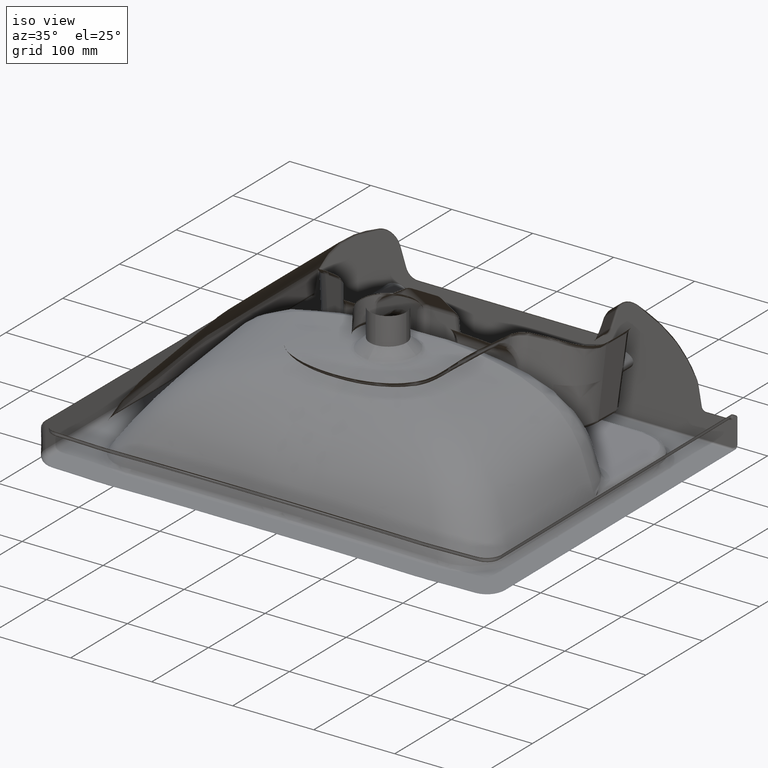
[diagram: clean part render]
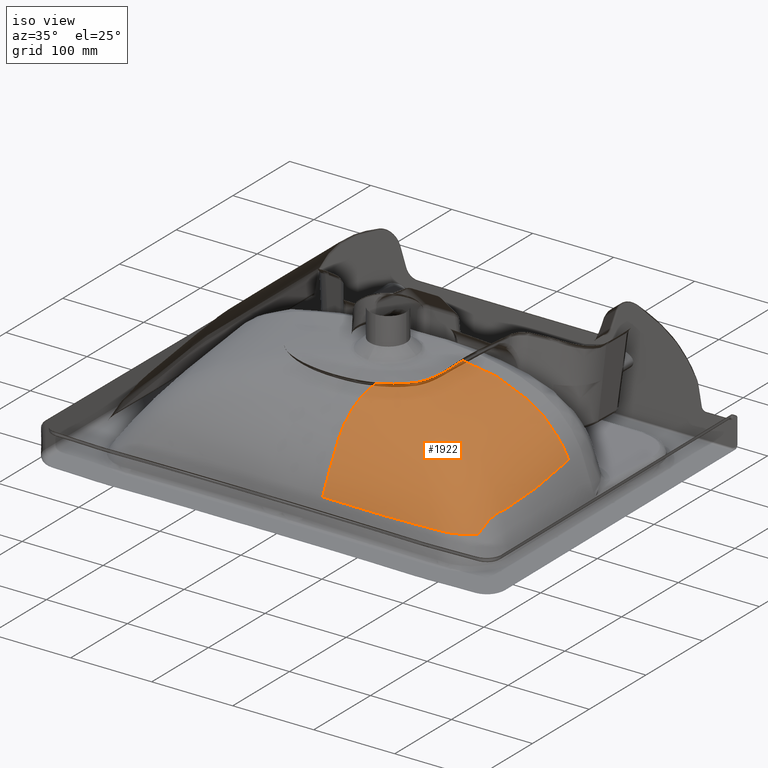
[diagram: same view with one face highlighted and labeled with its STEP entity id]
A machine part, iso view. The second image highlights one B-rep face of the part: STEP entity #1922.
In plain terms, the highlighted face is a freeform B-spline surface patch.
Its self-contained STEP definition (entity closure, byte-faithful):
#852=B_SPLINE_SURFACE_WITH_KNOTS('',3,3,((#34490,#34491,#34492,#34493,#34494,
#34495,#34496,#34497,#34498,#34499,#34500,#34501,#34502,#34503,#34504,#34505,
#34506,#34507,#34508,#34509),(#34510,#34511,#34512,#34513,#34514,#34515,
#34516,#34517,#34518,#34519,#34520,#34521,#34522,#34523,#34524,#34525,#34526,
#34527,#34528,#34529),(#34530,#34531,#34532,#34533,#34534,#34535,#34536,
#34537,#34538,#34539,#34540,#34541,#34542,#34543,#34544,#34545,#34546,#34547,
#34548,#34549),(#34550,#34551,#34552,#34553,#34554,#34555,#34556,#34557,
#34558,#34559,#34560,#34561,#34562,#34563,#34564,#34565,#34566,#34567,#34568,
#34569),(#34570,#34571,#34572,#34573,#34574,#34575,#34576,#34577,#34578,
#34579,#34580,#34581,#34582,#34583,#34584,#34585,#34586,#34587,#34588,#34589),
(#34590,#34591,#34592,#34593,#34594,#34595,#34596,#34597,#34598,#34599,
#34600,#34601,#34602,#34603,#34604,#34605,#34606,#34607,#34608,#34609),
(#34610,#34611,#34612,#34613,#34614,#34615,#34616,#34617,#34618,#34619,
#34620,#34621,#34622,#34623,#34624,#34625,#34626,#34627,#34628,#34629),
(#34630,#34631,#34632,#34633,#34634,#34635,#34636,#34637,#34638,#34639,
#34640,#34641,#34642,#34643,#34644,#34645,#34646,#34647,#34648,#34649),
(#34650,#34651,#34652,#34653,#34654,#34655,#34656,#34657,#34658,#34659,
#34660,#34661,#34662,#34663,#34664,#34665,#34666,#34667,#34668,#34669),
(#34670,#34671,#34672,#34673,#34674,#34675,#34676,#34677,#34678,#34679,
#34680,#34681,#34682,#34683,#34684,#34685,#34686,#34687,#34688,#34689),
(#34690,#34691,#34692,#34693,#34694,#34695,#34696,#34697,#34698,#34699,
#34700,#34701,#34702,#34703,#34704,#34705,#34706,#34707,#34708,#34709),
(#34710,#34711,#34712,#34713,#34714,#34715,#34716,#34717,#34718,#34719,
#34720,#34721,#34722,#34723,#34724,#34725,#34726,#34727,#34728,#34729),
(#34730,#34731,#34732,#34733,#34734,#34735,#34736,#34737,#34738,#34739,
#34740,#34741,#34742,#34743,#34744,#34745,#34746,#34747,#34748,#34749),
(#34750,#34751,#34752,#34753,#34754,#34755,#34756,#34757,#34758,#34759,
#34760,#34761,#34762,#34763,#34764,#34765,#34766,#34767,#34768,#34769),
(#34770,#34771,#34772,#34773,#34774,#34775,#34776,#34777,#34778,#34779,
#34780,#34781,#34782,#34783,#34784,#34785,#34786,#34787,#34788,#34789),
(#34790,#34791,#34792,#34793,#34794,#34795,#34796,#34797,#34798,#34799,
#34800,#34801,#34802,#34803,#34804,#34805,#34806,#34807,#34808,#34809),
(#34810,#34811,#34812,#34813,#34814,#34815,#34816,#34817,#34818,#34819,
#34820,#34821,#34822,#34823,#34824,#34825,#34826,#34827,#34828,#34829),
(#34830,#34831,#34832,#34833,#34834,#34835,#34836,#34837,#34838,#34839,
#34840,#34841,#34842,#34843,#34844,#34845,#34846,#34847,#34848,#34849),
(#34850,#34851,#34852,#34853,#34854,#34855,#34856,#34857,#34858,#34859,
#34860,#34861,#34862,#34863,#34864,#34865,#34866,#34867,#34868,#34869),
(#34870,#34871,#34872,#34873,#34874,#34875,#34876,#34877,#34878,#34879,
#34880,#34881,#34882,#34883,#34884,#34885,#34886,#34887,#34888,#34889),
(#34890,#34891,#34892,#34893,#34894,#34895,#34896,#34897,#34898,#34899,
#34900,#34901,#34902,#34903,#34904,#34905,#34906,#34907,#34908,#34909),
(#34910,#34911,#34912,#34913,#34914,#34915,#34916,#34917,#34918,#34919,
#34920,#34921,#34922,#34923,#34924,#34925,#34926,#34927,#34928,#34929),
(#34930,#34931,#34932,#34933,#34934,#34935,#34936,#34937,#34938,#34939,
#34940,#34941,#34942,#34943,#34944,#34945,#34946,#34947,#34948,#34949),
(#34950,#34951,#34952,#34953,#34954,#34955,#34956,#34957,#34958,#34959,
#34960,#34961,#34962,#34963,#34964,#34965,#34966,#34967,#34968,#34969),
(#34970,#34971,#34972,#34973,#34974,#34975,#34976,#34977,#34978,#34979,
#34980,#34981,#34982,#34983,#34984,#34985,#34986,#34987,#34988,#34989)),
 .UNSPECIFIED.,.F.,.F.,.F.,(4,1,1,1,1,1,1,1,1,1,1,1,1,1,1,1,1,1,1,1,1,1,
4),(4,1,1,1,1,1,1,1,1,1,1,1,1,1,1,1,1,4),(0.,0.0625,0.125,0.25,0.375,0.4375,
0.46875,0.4765625,0.484375,0.5,0.515625,0.53125,0.5625,0.59375,0.625,0.65625,
0.6640625,0.671875,0.6875,0.75,0.8125,0.875,1.),(0.,0.125,0.1875,0.25,0.3125,
0.375,0.4375,0.5,0.5625,0.625,0.6875,0.71875,0.75,0.78125,0.8125,0.875,
0.9375,1.),.UNSPECIFIED.);
#1922=ADVANCED_FACE('',(#2551),#852,.F.);
#2551=FACE_OUTER_BOUND('',#3100,.T.);
#3100=EDGE_LOOP('',(#5580,#5581,#5582,#5583,#5584,#5585,#5586,#5587));
#5580=ORIENTED_EDGE('',*,*,#7394,.F.);
#5581=ORIENTED_EDGE('',*,*,#7527,.T.);
#5582=ORIENTED_EDGE('',*,*,#7826,.F.);
#5583=ORIENTED_EDGE('',*,*,#6881,.F.);
#5584=ORIENTED_EDGE('',*,*,#6825,.F.);
#5585=ORIENTED_EDGE('',*,*,#6795,.F.);
#5586=ORIENTED_EDGE('',*,*,#7827,.F.);
#5587=ORIENTED_EDGE('',*,*,#7177,.T.);
#5975=VERTEX_POINT('',#14619);
#5976=VERTEX_POINT('',#14626);
#5995=VERTEX_POINT('',#14937);
#6031=VERTEX_POINT('',#15484);
#6153=VERTEX_POINT('',#19158);
#6201=VERTEX_POINT('',#19822);
#6327=VERTEX_POINT('',#21650);
#6396=VERTEX_POINT('',#23709);
#6795=EDGE_CURVE('',#5975,#5976,#8056,.T.);
#6825=EDGE_CURVE('',#5976,#5995,#8082,.T.);
#6881=EDGE_CURVE('',#5995,#6031,#8118,.T.);
#7177=EDGE_CURVE('',#6153,#6201,#8293,.T.);
#7394=EDGE_CURVE('',#6327,#6201,#8403,.T.);
#7527=EDGE_CURVE('',#6327,#6396,#8455,.T.);
#7826=EDGE_CURVE('',#6031,#6396,#8587,.T.);
#7827=EDGE_CURVE('',#6153,#5975,#8588,.T.);
#8056=B_SPLINE_CURVE_WITH_KNOTS('',3,(#14620,#14621,#14622,#14623,#14624,
#14625),.UNSPECIFIED.,.F.,.F.,(4,2,4),(0.,0.5,1.),.UNSPECIFIED.);
#8082=B_SPLINE_CURVE_WITH_KNOTS('',3,(#14929,#14930,#14931,#14932,#14933,
#14934,#14935,#14936),.UNSPECIFIED.,.F.,.F.,(4,2,2,4),(0.,0.25,0.5,1.),
 .UNSPECIFIED.);
#8118=B_SPLINE_CURVE_WITH_KNOTS('',3,(#15516,#15517,#15518,#15519,#15520,
#15521,#15522),.UNSPECIFIED.,.F.,.F.,(4,3,4),(0.,0.802573430894075,1.),
 .UNSPECIFIED.);
#8293=B_SPLINE_CURVE_WITH_KNOTS('',3,(#19823,#19824,#19825,#19826),
 .UNSPECIFIED.,.F.,.F.,(4,4),(0.,1.),.UNSPECIFIED.);
#8403=B_SPLINE_CURVE_WITH_KNOTS('',3,(#21651,#21652,#21653,#21654,#21655,
#21656,#21657,#21658,#21659,#21660,#21661,#21662,#21663,#21664),
 .UNSPECIFIED.,.F.,.F.,(4,2,2,2,2,2,4),(0.,0.125,0.25,0.3125,0.375,0.5,
1.),.UNSPECIFIED.);
#8455=B_SPLINE_CURVE_WITH_KNOTS('',3,(#23691,#23692,#23693,#23694,#23695,
#23696,#23697,#23698,#23699,#23700,#23701,#23702,#23703,#23704,#23705,#23706,
#23707,#23708),.UNSPECIFIED.,.F.,.F.,(4,2,2,2,2,2,2,2,4),(0.,0.124999999999999,
0.249999999999997,0.281249999999997,0.296874999999997,0.312499999999997,
0.374999999999997,0.499999999999998,1.),.UNSPECIFIED.);
#8587=B_SPLINE_CURVE_WITH_KNOTS('',3,(#34397,#34398,#34399,#34400,#34401,
#34402,#34403,#34404,#34405,#34406,#34407,#34408,#34409,#34410),
 .UNSPECIFIED.,.F.,.F.,(4,1,1,1,1,1,1,1,1,1,1,4),(0.,0.115001984994547,
0.270360584918154,0.348039884879958,0.425719184841762,0.581077784765369,
0.658757084727173,0.736436384688977,0.81411568465078,0.891794984612584,
0.969474284574388,1.),.UNSPECIFIED.);
#8588=B_SPLINE_CURVE_WITH_KNOTS('',3,(#34475,#34476,#34477,#34478,#34479,
#34480,#34481,#34482,#34483,#34484,#34485,#34486,#34487,#34488,#34489),
 .UNSPECIFIED.,.F.,.F.,(4,1,1,1,1,1,1,1,1,1,1,1,4),(0.,0.111798215935475,
0.178815670625153,0.245833125314831,0.312850580004509,0.379868034694188,
0.513902944073544,0.580920398763222,0.647937853452901,0.714955308142579,
0.781972762832257,0.916007672211614,1.),.UNSPECIFIED.);
#14619=CARTESIAN_POINT('',(-50.0002494259444,-63.7208675938333,-132.589269762929));
#14620=CARTESIAN_POINT('',(-50.0009563793561,-63.720108968059,-132.590156765849));
#14621=CARTESIAN_POINT('',(-56.8129519618308,-61.5410465299708,-132.861903392965));
#14622=CARTESIAN_POINT('',(-63.4159246669598,-58.758186017684,-133.203760355856));
#14623=CARTESIAN_POINT('',(-75.7777450016454,-51.6914371922445,-134.06836788853));
#14624=CARTESIAN_POINT('',(-81.4387579755111,-47.4743826413824,-134.585131101288));
#14625=CARTESIAN_POINT('',(-86.3232956277646,-42.234829305609,-135.216445768195));
#14626=CARTESIAN_POINT('',(-86.3232956277645,-42.2348293056091,-135.216445768195));
#14929=CARTESIAN_POINT('',(-86.3232956277644,-42.2348293056092,-135.216445768195));
#14930=CARTESIAN_POINT('',(-88.9355564811535,-39.4327053293569,-135.554074159649));
#14931=CARTESIAN_POINT('',(-91.0944930562234,-36.2770230637297,-135.932685326083));
#14932=CARTESIAN_POINT('',(-94.5570966801777,-29.6062527972822,-136.72817155952));
#14933=CARTESIAN_POINT('',(-95.8972036492424,-26.0367149559091,-137.149967712216));
#14934=CARTESIAN_POINT('',(-99.0114125294223,-15.0936551438902,-138.437801139922));
#14935=CARTESIAN_POINT('',(-99.9137918007563,-7.52089265000443,-139.325827008412));
#14936=CARTESIAN_POINT('',(-100.732382234716,0.0259354006217677,-140.212793846871));
#14937=CARTESIAN_POINT('',(-100.732382234716,0.0259354006218039,-140.212793846871));
#15484=CARTESIAN_POINT('',(-102.333401778855,14.7910724210758,-141.945604825931));
#15516=CARTESIAN_POINT('',(-100.732382234716,0.0259354006218758,-140.212793846871));
#15517=CARTESIAN_POINT('',(-101.160810190207,3.97573981810991,-140.677008151636));
#15518=CARTESIAN_POINT('',(-101.589259945427,7.92563924647087,-141.140393824121));
#15519=CARTESIAN_POINT('',(-102.017456772991,11.8755825502431,-141.603638623392));
#15520=CARTESIAN_POINT('',(-102.122789727884,12.8472366426228,-141.717593095741));
#15521=CARTESIAN_POINT('',(-102.228112506079,13.8188935058281,-141.831533350268));
#15522=CARTESIAN_POINT('',(-102.333425812209,14.7905531314337,-141.945458799193));
#19158=CARTESIAN_POINT('',(-49.9998703336096,-157.199900581322,-41.5298167888265));
#19822=CARTESIAN_POINT('',(-124.808714787029,-156.123147104387,-40.3579257671888));
#19823=CARTESIAN_POINT('',(-49.9998723799263,-157.200586214298,-41.5284785948204));
#19824=CARTESIAN_POINT('',(-74.9419087598941,-156.98693479958,-41.2986198446874));
#19825=CARTESIAN_POINT('',(-99.8780093604382,-156.616990331446,-40.9090356225497));
#19826=CARTESIAN_POINT('',(-124.808714787029,-156.123147104387,-40.3579257671889));
#21650=CARTESIAN_POINT('',(-228.272075584484,-137.930433445626,-40.0403707690547));
#21651=CARTESIAN_POINT('',(-228.272075584484,-137.930433445626,-40.0403707690546));
#21652=CARTESIAN_POINT('',(-225.090519508463,-141.118893283182,-40.0960255425402));
#21653=CARTESIAN_POINT('',(-221.46628985887,-143.906865215485,-40.1446897736365));
#21654=CARTESIAN_POINT('',(-213.652265647568,-148.456595232618,-40.2241056064915));
#21655=CARTESIAN_POINT('',(-209.510746522609,-150.204682130667,-40.2546185767971));
#21656=CARTESIAN_POINT('',(-202.942868408951,-152.028021915311,-40.2864450911242));
#21657=CARTESIAN_POINT('',(-200.719847978957,-152.495423599024,-40.294603617861));
#21658=CARTESIAN_POINT('',(-196.278894237322,-153.128441475935,-40.3056529860032));
#21659=CARTESIAN_POINT('',(-194.047029122351,-153.249244493444,-40.3077616105174));
#21660=CARTESIAN_POINT('',(-187.349925193218,-153.585728665876,-40.3136349635944));
#21661=CARTESIAN_POINT('',(-182.884659347542,-153.800945286749,-40.3173915836854));
#21662=CARTESIAN_POINT('',(-160.556494828131,-154.845489084692,-40.3356241634989));
#21663=CARTESIAN_POINT('',(-142.685671399236,-155.553902578519,-40.3479895670297));
#21664=CARTESIAN_POINT('',(-124.808714787028,-156.123147104387,-40.3579257671887));
#23691=CARTESIAN_POINT('',(-228.272075584483,-137.930433445626,-40.0403707690548));
#23692=CARTESIAN_POINT('',(-228.865116685335,-132.633339253064,-43.9597371584237));
#23693=CARTESIAN_POINT('',(-229.54570137406,-127.117214598782,-47.4583013484076));
#23694=CARTESIAN_POINT('',(-231.221983632074,-115.24613162797,-52.8487290326856));
#23695=CARTESIAN_POINT('',(-232.326605994354,-108.678784407525,-54.7050984207511));
#23696=CARTESIAN_POINT('',(-233.784078993083,-100.559367477462,-54.2787806785117));
#23697=CARTESIAN_POINT('',(-234.179713423048,-98.9263382193599,-53.8502968875479));
#23698=CARTESIAN_POINT('',(-234.28245440669,-96.4688616137313,-53.8696079289374));
#23699=CARTESIAN_POINT('',(-234.271145737211,-95.6535083629761,-53.9469798820884));
#23700=CARTESIAN_POINT('',(-234.284110218213,-94.0200197563303,-54.0494840494043));
#23701=CARTESIAN_POINT('',(-234.290989377,-93.2032936261793,-54.1009716828863));
#23702=CARTESIAN_POINT('',(-234.328327026535,-89.1194891488624,-54.3550252056109));
#23703=CARTESIAN_POINT('',(-234.363242086994,-85.8519577284593,-54.5493084148727));
#23704=CARTESIAN_POINT('',(-234.440166551055,-76.0514125042933,-55.1709040519996));
#23705=CARTESIAN_POINT('',(-234.471175299716,-69.5180419368305,-55.6139836625607));
#23706=CARTESIAN_POINT('',(-234.525253121212,-36.8821791980138,-58.0825642202814));
#23707=CARTESIAN_POINT('',(-234.338157876152,-10.8674477065066,-60.7788375826826));
#23708=CARTESIAN_POINT('',(-233.366950590609,14.7906677713562,-66.2225907886849));
#23709=CARTESIAN_POINT('',(-233.368681924784,14.7915335725219,-66.2171416187439));
#34397=CARTESIAN_POINT('',(-102.333423621825,14.7916054585755,-141.945718621587));
#34398=CARTESIAN_POINT('',(-108.437764176413,14.7916054585754,-141.604724323199));
#34399=CARTESIAN_POINT('',(-122.709403332406,14.7916054585753,-140.349861050398));
#34400=CARTESIAN_POINT('',(-140.78148987957,14.7916054585753,-137.036550866901));
#34401=CARTESIAN_POINT('',(-156.610339639515,14.7916054585752,-132.181701987654));
#34402=CARTESIAN_POINT('',(-172.094531514044,14.7916054585754,-126.006019382374));
#34403=CARTESIAN_POINT('',(-186.781970395243,14.7916054585753,-118.540012510358));
#34404=CARTESIAN_POINT('',(-200.52662008912,14.7916054585753,-108.947246486214));
#34405=CARTESIAN_POINT('',(-209.761898425942,14.7916054585753,-100.69752676598));
#34406=CARTESIAN_POINT('',(-217.730205269323,14.7916054585753,-91.3356932366798));
#34407=CARTESIAN_POINT('',(-225.266233990159,14.7916054585753,-81.5883836435933));
#34408=CARTESIAN_POINT('',(-230.304486358661,14.7916054585753,-72.9313542460503));
#34409=CARTESIAN_POINT('',(-232.71618102091,14.7916054585753,-67.7034172251825));
#34410=CARTESIAN_POINT('',(-233.367480002474,14.7916054585753,-66.2176777980273));
#34475=CARTESIAN_POINT('',(-50.0000000046041,-157.201545902544,-41.5323471457052));
#34476=CARTESIAN_POINT('',(-50.0000000037315,-154.848620787258,-46.1412228790791));
#34477=CARTESIAN_POINT('',(-49.9999999993902,-151.088148308708,-53.5143424537715));
#34478=CARTESIAN_POINT('',(-49.9999999993902,-146.056896286124,-63.7198904081197));
#34479=CARTESIAN_POINT('',(-50.0000000001525,-141.967685320531,-72.0777623479118));
#34480=CARTESIAN_POINT('',(-50.,-137.88801703957,-80.4486755533298));
#34481=CARTESIAN_POINT('',(-50.,-132.128559311423,-91.4057466226751));
#34482=CARTESIAN_POINT('',(-50.,-125.317161733901,-101.647960346886));
#34483=CARTESIAN_POINT('',(-50.,-116.655855077133,-110.752957581402));
#34484=CARTESIAN_POINT('',(-50.,-109.503752118688,-116.654467242398));
#34485=CARTESIAN_POINT('',(-50.,-101.684468611662,-121.64716759221));
#34486=CARTESIAN_POINT('',(-50.0000000000541,-90.3579448963206,-127.077399370902));
#34487=CARTESIAN_POINT('',(-49.9999999996403,-77.6622293389733,-130.674141218723));
#34488=CARTESIAN_POINT('',(-50.0000000004393,-67.6117193642459,-132.15351405583));
#34489=CARTESIAN_POINT('',(-50.0000000006493,-63.7208264218206,-132.5883352177));
#34490=CARTESIAN_POINT('',(-5.87547534955156E-009,-64.1674072786492,-132.300008261711));
#34491=CARTESIAN_POINT('',(-5.63066171656933E-009,-70.0914126241573,-131.851736448282));
#34492=CARTESIAN_POINT('',(-5.26344134278515E-009,-78.9413465150922,-130.618274578249));
#34493=CARTESIAN_POINT('',(-4.77381450013751E-009,-90.4193091994106,-127.474765554666));
#34494=CARTESIAN_POINT('',(-4.4065946051874E-009,-98.7462125584352,-124.279554121704));
#34495=CARTESIAN_POINT('',(-4.03937502310955E-009,-106.670953194162,-120.158629956626));
#34496=CARTESIAN_POINT('',(-3.67215585387779E-009,-114.038799950824,-115.120022614015));
#34497=CARTESIAN_POINT('',(-3.30493719746598E-009,-120.695021672651,-109.171761648454));
#34498=CARTESIAN_POINT('',(-2.93771914097287E-009,-126.585743917653,-102.458994221982));
#34499=CARTESIAN_POINT('',(-2.5705017714972E-009,-131.657092243839,-95.1268674966404));
#34500=CARTESIAN_POINT('',(-2.2032851885614E-009,-136.037413490476,-87.3487134084731));
#34501=CARTESIAN_POINT('',(-1.89727210783348E-009,-139.218780995773,-80.6396721460174));
#34502=CARTESIAN_POINT('',(-1.65246231185982E-009,-141.657852223814,-75.221566073616));
#34503=CARTESIAN_POINT('',(-1.46885536118696E-009,-143.472586851834,-71.1510765853361));
#34504=CARTESIAN_POINT('',(-1.28524886882455E-009,-145.311195281932,-67.0922037603165));
#34505=CARTESIAN_POINT('',(-1.04044089757853E-009,-147.791558907497,-61.6940397244292));
#34506=CARTESIAN_POINT('',(-7.34432357384341E-010,-150.940650379638,-54.9685420119391));
#34507=CARTESIAN_POINT('',(-3.67224787119677E-010,-154.822585394403,-46.9468140771026));
#34508=CARTESIAN_POINT('',(-1.22419663607643E-010,-157.483341288968,-41.6349309595425));
#34509=CARTESIAN_POINT('',(-1.5697772796678E-014,-158.802307632031,-38.9733478734925));
#34510=CARTESIAN_POINT('',(-3.31743469347595,-64.1674072784422,-132.300008261773));
#34511=CARTESIAN_POINT('',(-3.5783956567324,-70.0498486176665,-131.864489027024));
#34512=CARTESIAN_POINT('',(-3.96944044314568,-78.8381880419436,-130.653346958037));
#34513=CARTESIAN_POINT('',(-4.48745956117864,-90.240732040933,-127.544516128213));
#34514=CARTESIAN_POINT('',(-4.87264094657409,-98.5169373975944,-124.376565479691));
#34515=CARTESIAN_POINT('',(-5.25270967634001,-106.399358419131,-120.282964531507));
#34516=CARTESIAN_POINT('',(-5.6256333624856,-113.736487517054,-115.271305908086));
#34517=CARTESIAN_POINT('',(-5.99250634988372,-120.376817104213,-109.354820195244));
#34518=CARTESIAN_POINT('',(-6.34996117080289,-126.267595122608,-102.672266786689));
#34519=CARTESIAN_POINT('',(-6.69450599560892,-131.356069514249,-95.3624764346997));
#34520=CARTESIAN_POINT('',(-7.01934327017975,-135.767913224053,-87.5910999100715));
#34521=CARTESIAN_POINT('',(-7.26761557229479,-138.985318202937,-80.8715542314252));
#34522=CARTESIAN_POINT('',(-7.46103672381497,-141.45542821781,-75.4421056519698));
#34523=CARTESIAN_POINT('',(-7.60148834034457,-143.293745452638,-71.3599861284993));
#34524=CARTESIAN_POINT('',(-7.73458057075525,-145.155439118914,-67.2843733755202));
#34525=CARTESIAN_POINT('',(-7.90132501862591,-147.665981273978,-61.8577364976498));
#34526=CARTESIAN_POINT('',(-8.08980766368258,-150.851782639344,-55.0871816220135));
#34527=CARTESIAN_POINT('',(-8.30696528308693,-154.775623168488,-47.0074614771416));
#34528=CARTESIAN_POINT('',(-8.45022846031164,-157.462799422923,-41.6556385225564));
#34529=CARTESIAN_POINT('',(-8.52179877421944,-158.795213687782,-38.9741815965433));
#34530=CARTESIAN_POINT('',(-9.95161260202714,-63.985967622441,-132.322838918607));
#34531=CARTESIAN_POINT('',(-10.7345256578192,-69.7925388173001,-131.910445271227));
#34532=CARTESIAN_POINT('',(-11.9077052660931,-78.4685761105654,-130.740373449349));
#34533=CARTESIAN_POINT('',(-13.4618229522375,-89.7347984753021,-127.69613986706));
#34534=CARTESIAN_POINT('',(-14.6174123574579,-97.9204946295408,-124.579141432435));
#34535=CARTESIAN_POINT('',(-15.7576637957897,-105.729163225001,-120.536617563054));
#34536=CARTESIAN_POINT('',(-16.8764801032606,-113.015743807749,-115.575287023026));
#34537=CARTESIAN_POINT('',(-17.977144314489,-119.635175927877,-109.718782460638));
#34538=CARTESIAN_POINT('',(-19.0495540262806,-125.536952295362,-103.093087732933));
#34539=CARTESIAN_POINT('',(-20.0832337497328,-130.670565620217,-95.8244007726636));
#34540=CARTESIAN_POINT('',(-21.0577908224793,-135.156341058658,-88.0630100201285));
#34541=CARTESIAN_POINT('',(-21.8026454363528,-138.454893319968,-81.3194810466138));
#34542=CARTESIAN_POINT('',(-22.3829390569361,-140.994338776707,-75.8649678830604));
#34543=CARTESIAN_POINT('',(-22.8043165310419,-142.885264626304,-71.7578036117162));
#34544=CARTESIAN_POINT('',(-23.203615846791,-144.798572166088,-67.6469263253256));
#34545=CARTESIAN_POINT('',(-23.7038793564257,-147.376729248354,-62.1609641934993));
#34546=CARTESIAN_POINT('',(-24.2693649991241,-150.645022735422,-55.2973205290831));
#34547=CARTESIAN_POINT('',(-24.9208831063712,-154.663561095627,-47.0980466091555));
#34548=CARTESIAN_POINT('',(-25.350702804068,-157.410835938006,-41.66396441053));
#34549=CARTESIAN_POINT('',(-25.5654288288028,-158.773774980558,-38.9415700195959));
#34550=CARTESIAN_POINT('',(-23.1815451433638,-62.9084776686863,-132.458420102271));
#34551=CARTESIAN_POINT('',(-25.0099167419666,-68.5860085493556,-132.082845985218));
#34552=CARTESIAN_POINT('',(-27.7496975305711,-77.0714915424084,-130.980767190941));
#34553=CARTESIAN_POINT('',(-31.3791210684171,-88.1104705877209,-128.046864814902));
#34554=CARTESIAN_POINT('',(-34.0778580498968,-96.1491982989255,-125.017623341456));
#34555=CARTESIAN_POINT('',(-36.7408064419697,-103.844412004044,-121.063106163064));
#34556=CARTESIAN_POINT('',(-39.3537395287003,-111.063945518254,-116.188284323208));
#34557=CARTESIAN_POINT('',(-41.9243177241987,-117.675632666129,-110.437594595112));
#34558=CARTESIAN_POINT('',(-44.4289687543443,-123.633455693605,-103.911469762488));
#34559=CARTESIAN_POINT('',(-46.843249811698,-128.8913968467,-96.7108421190434));
#34560=CARTESIAN_POINT('',(-49.1195780174053,-133.559085704226,-88.9552754440788));
#34561=CARTESIAN_POINT('',(-50.8595402019701,-137.048307498563,-82.151990325314));
#34562=CARTESIAN_POINT('',(-52.215133118419,-139.749123813577,-76.637916349154));
#34563=CARTESIAN_POINT('',(-53.199528075982,-141.762291873616,-72.4735888487543));
#34564=CARTESIAN_POINT('',(-54.1324073307124,-143.795852141322,-68.2851087622328));
#34565=CARTESIAN_POINT('',(-55.3012633216146,-146.531939052532,-62.6710644780841));
#34566=CARTESIAN_POINT('',(-56.6226979067709,-149.99359175118,-55.6094536805948));
#34567=CARTESIAN_POINT('',(-58.1452685263128,-154.235575735317,-47.1569247439399));
#34568=CARTESIAN_POINT('',(-59.1497556226933,-157.125747728125,-41.5488924128232));
#34569=CARTESIAN_POINT('',(-59.6515702479518,-158.561086313335,-38.7399072698417));
#34570=CARTESIAN_POINT('',(-39.5800595357864,-60.2426227368265,-132.793866169016));
#34571=CARTESIAN_POINT('',(-42.7208550428459,-65.802468152456,-132.446795121202));
#34572=CARTESIAN_POINT('',(-47.4272884017787,-74.1151806617892,-131.403425595923));
#34573=CARTESIAN_POINT('',(-53.6620457141386,-84.9573354132164,-128.572394540357));
#34574=CARTESIAN_POINT('',(-58.2981182608573,-92.8777749621743,-125.626567252879));
#34575=CARTESIAN_POINT('',(-62.8728389400216,-100.496592445911,-121.755776422721));
#34576=CARTESIAN_POINT('',(-67.361819095742,-107.697739515996,-116.962808442575));
#34577=CARTESIAN_POINT('',(-71.7781908664928,-114.365167840101,-111.318105241839));
#34578=CARTESIAN_POINT('',(-76.0815446394961,-120.458471584111,-104.890160762563));
#34579=CARTESIAN_POINT('',(-80.2299784591416,-125.937244914051,-97.7483252496447));
#34580=CARTESIAN_POINT('',(-84.141921675965,-130.897747936981,-89.9737566561388));
#34581=CARTESIAN_POINT('',(-87.1327692363231,-134.679825307224,-83.0738746762244));
#34582=CARTESIAN_POINT('',(-89.4630870025474,-137.625970122778,-77.4678283406365));
#34583=CARTESIAN_POINT('',(-91.1554543618893,-139.824652141642,-73.2189057961655));
#34584=CARTESIAN_POINT('',(-92.7595090878041,-142.041239515024,-68.920281201728));
#34585=CARTESIAN_POINT('',(-94.7697064102341,-145.018353640112,-63.1286128835067));
#34586=CARTESIAN_POINT('',(-97.0430780858918,-148.776224012856,-55.7976414900892));
#34587=CARTESIAN_POINT('',(-99.6628654407172,-153.362937418456,-47.0022617670208));
#34588=CARTESIAN_POINT('',(-101.391287515396,-156.475345776997,-41.1592704266206));
#34589=CARTESIAN_POINT('',(-102.254763256281,-158.022991254376,-38.2332861717451));
#34590=CARTESIAN_POINT('',(-55.4365583998468,-55.1858348235148,-133.430164714437));
#34591=CARTESIAN_POINT('',(-59.911944746704,-60.7152462113781,-133.085063851107));
#34592=CARTESIAN_POINT('',(-66.6182810729763,-68.986065392902,-132.060604267692));
#34593=CARTESIAN_POINT('',(-75.5027060225317,-79.805898724991,-129.279378763089));
#34594=CARTESIAN_POINT('',(-82.1093645315008,-87.7389272676125,-126.377166334446));
#34595=CARTESIAN_POINT('',(-88.6291078947677,-95.4122256858778,-122.550302525386));
#34596=CARTESIAN_POINT('',(-95.0273855164891,-102.725863467748,-117.799389077817));
#34597=CARTESIAN_POINT('',(-101.322801259504,-109.579910123993,-112.220873077308));
#34598=CARTESIAN_POINT('',(-107.458108172376,-115.939571740448,-105.851309624246));
#34599=CARTESIAN_POINT('',(-113.373945151325,-121.770054403144,-98.7284669147214));
#34600=CARTESIAN_POINT('',(-118.954753776275,-127.154248747387,-90.8950970755406));
#34601=CARTESIAN_POINT('',(-123.224195376603,-131.338245990129,-83.865452128532));
#34602=CARTESIAN_POINT('',(-126.551404923943,-134.616970743496,-78.1409005487606));
#34603=CARTESIAN_POINT('',(-128.96836988357,-137.066605299141,-73.7874832966515));
#34604=CARTESIAN_POINT('',(-131.260225279174,-139.531658356154,-69.3588145307314));
#34605=CARTESIAN_POINT('',(-134.133930864473,-142.837051132393,-63.3629892936818));
#34606=CARTESIAN_POINT('',(-137.386948294808,-147.000203475826,-55.7294911983916));
#34607=CARTESIAN_POINT('',(-141.137202781928,-152.062523458798,-46.5514613617762));
#34608=CARTESIAN_POINT('',(-143.611726766246,-155.484419620346,-40.4469781273368));
#34609=CARTESIAN_POINT('',(-144.847947088427,-157.187997708531,-37.3907283181894));
#34610=CARTESIAN_POINT('',(-65.8167514061444,-49.9805114896522,-134.085153557605));
#34611=CARTESIAN_POINT('',(-71.2559844875218,-55.5512754804387,-133.725425021808));
#34612=CARTESIAN_POINT('',(-79.4067026109246,-63.8867539660355,-132.690192195291));
#34613=CARTESIAN_POINT('',(-90.2051611998407,-74.8162751493069,-129.911816973152));
#34614=CARTESIAN_POINT('',(-98.2356796023779,-82.8521006210326,-127.016124743286));
#34615=CARTESIAN_POINT('',(-106.16138856451,-90.6575203270074,-123.195999646589));
#34616=CARTESIAN_POINT('',(-113.940624132425,-98.1438862406658,-118.450514169416));
#34617=CARTESIAN_POINT('',(-121.595820376016,-105.222550362949,-112.894319006658));
#34618=CARTESIAN_POINT('',(-129.05794420679,-111.862647123654,-106.54161206954));
#34619=CARTESIAN_POINT('',(-136.255413117244,-118.03331095282,-99.4080541199829));
#34620=CARTESIAN_POINT('',(-143.048877247876,-123.808073855521,-91.5095132064226));
#34621=CARTESIAN_POINT('',(-148.25037610951,-128.351735536961,-84.3690256804421));
#34622=CARTESIAN_POINT('',(-152.305043050294,-131.925922669158,-78.5455136281375));
#34623=CARTESIAN_POINT('',(-155.251451190116,-134.598216317319,-74.1069449794781));
#34624=CARTESIAN_POINT('',(-158.0469919145,-137.284187669643,-69.5752401923165));
#34625=CARTESIAN_POINT('',(-161.554786430468,-140.882031924048,-63.4204983104825));
#34626=CARTESIAN_POINT('',(-165.530597322405,-145.407202174911,-55.5552230218753));
#34627=CARTESIAN_POINT('',(-170.116628522125,-150.896431395584,-46.0853279033699));
#34628=CARTESIAN_POINT('',(-173.143056989851,-154.597625441597,-39.7817935414983));
#34629=CARTESIAN_POINT('',(-174.655015092271,-156.441684568526,-36.6263544435582));
#34630=CARTESIAN_POINT('',(-70.38532970224,-47.1331110356875,-134.443443602181));
#34631=CARTESIAN_POINT('',(-76.2824626158473,-52.7403287154135,-134.072986290515));
#34632=CARTESIAN_POINT('',(-85.119385917579,-61.1317089914174,-133.026845566365));
#34633=CARTESIAN_POINT('',(-96.827302107175,-72.1466652093309,-130.241918976637));
#34634=CARTESIAN_POINT('',(-105.534497661387,-80.2560992259424,-127.343347947154));
#34635=CARTESIAN_POINT('',(-114.128575709796,-88.1487423575842,-123.520445503575));
#34636=CARTESIAN_POINT('',(-122.564569668105,-95.7411848745178,-118.771574120751));
#34637=CARTESIAN_POINT('',(-130.866691916626,-102.950017076692,-113.219836169328));
#34638=CARTESIAN_POINT('',(-138.9604372318,-109.746197267887,-106.869049436991));
#34639=CARTESIAN_POINT('',(-146.768548882971,-116.100683752143,-99.7246105197978));
#34640=CARTESIAN_POINT('',(-154.140630985188,-122.082663456217,-91.7899055726544));
#34641=CARTESIAN_POINT('',(-159.787870171431,-126.814880031173,-84.5930337250859));
#34642=CARTESIAN_POINT('',(-164.190684750374,-130.543500391122,-78.7196383825959));
#34643=CARTESIAN_POINT('',(-167.39070546726,-133.33211217471,-74.2385821395847));
#34644=CARTESIAN_POINT('',(-170.427899766265,-136.133593435186,-69.6560861823219));
#34645=CARTESIAN_POINT('',(-174.240492276962,-139.884472999179,-63.4236242160428));
#34646=CARTESIAN_POINT('',(-178.564885300788,-144.599290825471,-55.4458163920447));
#34647=CARTESIAN_POINT('',(-183.554555032447,-150.312609305734,-45.8345063578977));
#34648=CARTESIAN_POINT('',(-186.847624430102,-154.160731635688,-39.4346180446375));
#34649=CARTESIAN_POINT('',(-188.492803426091,-156.078641235111,-36.2311580986461));
#34650=CARTESIAN_POINT('',(-72.4324495580209,-45.7297056052799,-134.620034918486));
#34651=CARTESIAN_POINT('',(-78.5434536651405,-51.3574106479593,-134.243834386868));
#34652=CARTESIAN_POINT('',(-87.7008862632872,-59.7800856254696,-133.191472032561));
#34653=CARTESIAN_POINT('',(-99.8336177335479,-70.8417985647191,-130.401938780228));
#34654=CARTESIAN_POINT('',(-108.856925033412,-78.9906996310578,-127.500851858133));
#34655=CARTESIAN_POINT('',(-117.763280335749,-86.9290936035566,-123.675480346282));
#34656=CARTESIAN_POINT('',(-126.506192765273,-94.5759884279355,-118.923859021907));
#34657=CARTESIAN_POINT('',(-135.110695460947,-101.850392080609,-113.372991029082));
#34658=CARTESIAN_POINT('',(-143.499757598416,-108.724104653348,-107.021903329239));
#34659=CARTESIAN_POINT('',(-151.593503574796,-115.168926238195,-99.8712552111185));
#34660=CARTESIAN_POINT('',(-159.236439339547,-121.252038341143,-91.918671955687));
#34661=CARTESIAN_POINT('',(-165.092570841214,-126.075858480872,-84.6947872285236));
#34662=CARTESIAN_POINT('',(-169.658601754866,-129.879418298612,-78.7975773517814));
#34663=CARTESIAN_POINT('',(-172.977574037452,-132.724462313056,-74.296317841906));
#34664=CARTESIAN_POINT('',(-176.128200362568,-135.582002776415,-69.6897861982023));
#34665=CARTESIAN_POINT('',(-180.084001680237,-139.407176605199,-63.4206619464744));
#34666=CARTESIAN_POINT('',(-184.572444776694,-144.214102310992,-55.3899266826645));
#34667=CARTESIAN_POINT('',(-189.752208429511,-150.036340478539,-45.7121610100486));
#34668=CARTESIAN_POINT('',(-193.170875681154,-153.955938446063,-39.2670101650578));
#34669=CARTESIAN_POINT('',(-194.878807648109,-155.909764170666,-36.0409910121134));
#34670=CARTESIAN_POINT('',(-73.7796543817142,-44.7696816186245,-134.740835291503));
#34671=CARTESIAN_POINT('',(-80.0340248793788,-50.4118536052894,-134.360608330971));
#34672=CARTESIAN_POINT('',(-89.4063087341073,-58.8566047701617,-133.303801799806));
#34673=CARTESIAN_POINT('',(-101.823821581218,-69.9511062610015,-130.510802207845));
#34674=CARTESIAN_POINT('',(-111.059048437155,-78.1275317468496,-127.60774160059));
#34675=CARTESIAN_POINT('',(-120.174766967751,-86.0976393329443,-123.780427619805));
#34676=CARTESIAN_POINT('',(-129.123470103722,-93.7820487486448,-119.026676577644));
#34677=CARTESIAN_POINT('',(-137.930738156471,-101.101379754675,-113.476092133797));
#34678=CARTESIAN_POINT('',(-146.517856567774,-108.027993634801,-107.124507365533));
#34679=CARTESIAN_POINT('',(-154.803203819933,-114.534251673068,-99.9694233567077));
#34680=CARTESIAN_POINT('',(-162.627887085344,-120.68599842829,-92.0046248056651));
#34681=CARTESIAN_POINT('',(-168.624262124214,-125.571898488721,-84.7624844725892));
#34682=CARTESIAN_POINT('',(-173.299889522544,-129.426226647005,-78.8492006240662));
#34683=CARTESIAN_POINT('',(-176.698752045082,-132.309498675198,-74.3343240579051));
#34684=CARTESIAN_POINT('',(-179.92558891709,-135.205018466992,-69.7116204115313));
#34685=CARTESIAN_POINT('',(-183.977648367612,-139.080530507653,-63.4178570205581));
#34686=CARTESIAN_POINT('',(-188.576440172743,-143.949872343968,-55.3515897773579));
#34687=CARTESIAN_POINT('',(-193.884111498637,-149.845936689395,-45.6292239223436));
#34688=CARTESIAN_POINT('',(-197.38729624781,-153.813993783981,-39.1537004405865));
#34689=CARTESIAN_POINT('',(-199.137456326177,-155.792167943046,-35.9125430085336));
#34690=CARTESIAN_POINT('',(-75.4286062319367,-43.5226855641172,-134.897745525651));
#34691=CARTESIAN_POINT('',(-81.8622962720648,-49.1617948403423,-134.513826037467));
#34692=CARTESIAN_POINT('',(-91.5033115289437,-57.6024216537851,-133.453475047967));
#34693=CARTESIAN_POINT('',(-104.277024205681,-68.6956160532697,-130.65882354845));
#34694=CARTESIAN_POINT('',(-113.777317838132,-76.8747274778723,-127.75530659748));
#34695=CARTESIAN_POINT('',(-123.154907735474,-84.8527574953297,-123.927575293264));
#34696=CARTESIAN_POINT('',(-132.361016585928,-92.5523405645498,-119.173172866606));
#34697=CARTESIAN_POINT('',(-141.421908666443,-99.8961111766441,-113.624953621719));
#34698=CARTESIAN_POINT('',(-150.256764751463,-106.857132105373,-107.274758280662));
#34699=CARTESIAN_POINT('',(-158.781780929768,-113.40846612478,-100.116140171192));
#34700=CARTESIAN_POINT('',(-166.833815902427,-119.614286609713,-92.1380832633707));
#34701=CARTESIAN_POINT('',(-173.005634805655,-124.551353582996,-84.8747990585172));
#34702=CARTESIAN_POINT('',(-177.818369364113,-128.447995776537,-78.9427632537585));
#34703=CARTESIAN_POINT('',(-181.317178352303,-131.363193029101,-74.4118707486082));
#34704=CARTESIAN_POINT('',(-184.639362073639,-134.290327188622,-69.7699574802645));
#34705=CARTESIAN_POINT('',(-188.811855744508,-138.207615603708,-63.4467356737251));
#34706=CARTESIAN_POINT('',(-193.548722878335,-143.128544615147,-55.3377290918999));
#34707=CARTESIAN_POINT('',(-199.016446126999,-149.085172097293,-45.5616237716232));
#34708=CARTESIAN_POINT('',(-202.625389302365,-153.092656710286,-39.0494750023985));
#34709=CARTESIAN_POINT('',(-204.428390297139,-155.090693217217,-35.7900649757052));
#34710=CARTESIAN_POINT('',(-77.3443388720766,-41.9473753553071,-135.095967719559));
#34711=CARTESIAN_POINT('',(-83.9892956290585,-47.5532375306362,-134.709317109263));
#34712=CARTESIAN_POINT('',(-93.9469134673647,-55.9445573498108,-133.647262636364));
#34713=CARTESIAN_POINT('',(-107.14023247145,-66.9770395429324,-130.854028669922));
#34714=CARTESIAN_POINT('',(-116.952731134565,-75.1150163214879,-127.9525139731));
#34715=CARTESIAN_POINT('',(-126.638691570849,-83.0581954840279,-124.126831747371));
#34716=CARTESIAN_POINT('',(-136.147812177529,-90.731629164919,-119.374197525922));
#34717=CARTESIAN_POINT('',(-145.50717799021,-98.0603695317377,-113.831366386391));
#34718=CARTESIAN_POINT('',(-154.633444182537,-105.018321146236,-107.485388224589));
#34719=CARTESIAN_POINT('',(-163.440187971063,-111.57938857046,-100.32507906095));
#34720=CARTESIAN_POINT('',(-171.759169891269,-117.805739758494,-92.3336619916004));
#34721=CARTESIAN_POINT('',(-178.136625514097,-122.767242216737,-85.0471300294514));
#34722=CARTESIAN_POINT('',(-183.109971930606,-126.685089404219,-79.0942917882802));
#34723=CARTESIAN_POINT('',(-186.725779127002,-129.616418039752,-74.5454550896454));
#34724=CARTESIAN_POINT('',(-190.159441516955,-132.55931055427,-69.8817652082406));
#34725=CARTESIAN_POINT('',(-194.472539518139,-136.497158770297,-63.5248932140919));
#34726=CARTESIAN_POINT('',(-199.370201128772,-141.443027581426,-55.3667243147545));
#34727=CARTESIAN_POINT('',(-205.024111583607,-147.42797305508,-45.5286815027682));
#34728=CARTESIAN_POINT('',(-208.756048136303,-151.453198841793,-38.9742822996526));
#34729=CARTESIAN_POINT('',(-210.620499863714,-153.46028424198,-35.693819114926));
#34730=CARTESIAN_POINT('',(-79.813433226338,-39.7467987850771,-135.372867541049));
#34731=CARTESIAN_POINT('',(-86.7292525133595,-45.2691623766672,-134.984655446478));
#34732=CARTESIAN_POINT('',(-97.0927674882535,-53.5359858630016,-133.923449680195));
#34733=CARTESIAN_POINT('',(-110.823908743938,-64.4091802158843,-131.136265781602));
#34734=CARTESIAN_POINT('',(-121.036441142623,-72.433557125894,-128.240540774789));
#34735=CARTESIAN_POINT('',(-131.117322658847,-80.2715148080613,-124.420710671523));
#34736=CARTESIAN_POINT('',(-141.014219301848,-87.8513289640309,-119.673554074832));
#34737=CARTESIAN_POINT('',(-150.755310452102,-95.1012753299993,-114.141027093589));
#34738=CARTESIAN_POINT('',(-160.253883815522,-101.996380851708,-107.803791855273));
#34739=CARTESIAN_POINT('',(-169.420024779029,-108.511672475205,-100.644347970555));
#34740=CARTESIAN_POINT('',(-178.07869632398,-114.706644260223,-92.6382373703128));
#34741=CARTESIAN_POINT('',(-184.716801207402,-119.651765970234,-85.3233084132806));
#34742=CARTESIAN_POINT('',(-189.893470342215,-123.558717367093,-79.3448136021011));
#34743=CARTESIAN_POINT('',(-193.657155330228,-126.482177676343,-74.7736113210599));
#34744=CARTESIAN_POINT('',(-197.231336125679,-129.416704493947,-70.0824459644799));
#34745=CARTESIAN_POINT('',(-201.721080141516,-133.342796662019,-63.6827870653939));
#34746=CARTESIAN_POINT('',(-206.819601355685,-138.272957144553,-55.4616684242175));
#34747=CARTESIAN_POINT('',(-212.705521780099,-144.236906266404,-45.5441623077644));
#34748=CARTESIAN_POINT('',(-216.590623076803,-148.246617835533,-38.9355092046694));
#34749=CARTESIAN_POINT('',(-218.531595901512,-150.246183868788,-35.6280151485027));
#34750=CARTESIAN_POINT('',(-82.7377657472638,-36.8177543364806,-135.741430896635));
#34751=CARTESIAN_POINT('',(-89.9614590041984,-42.1657570646593,-135.354584495079));
#34752=CARTESIAN_POINT('',(-100.786289110873,-50.1719786843364,-134.299415934603));
#34753=CARTESIAN_POINT('',(-115.128299795784,-60.7060879694447,-131.52642971754));
#34754=CARTESIAN_POINT('',(-125.794818074977,-68.4834835931654,-128.642918145777));
#34755=CARTESIAN_POINT('',(-136.323294652172,-76.08493297426,-124.835379518127));
#34756=CARTESIAN_POINT('',(-146.658855051619,-83.4427412734708,-120.100046274922));
#34757=CARTESIAN_POINT('',(-156.831046584884,-90.4892136877694,-114.585375814077));
#34758=CARTESIAN_POINT('',(-166.748947623217,-97.2007801428846,-108.264045552656));
#34759=CARTESIAN_POINT('',(-176.318278766495,-103.553870564865,-101.110659589128));
#34760=CARTESIAN_POINT('',(-185.355506053424,-109.604636645507,-93.0911583978088));
#34761=CARTESIAN_POINT('',(-192.281042271793,-114.441797878055,-85.7448801326209));
#34762=CARTESIAN_POINT('',(-197.681160611848,-118.265141902897,-79.7376321572899));
#34763=CARTESIAN_POINT('',(-201.606664694905,-121.12627607899,-75.14096105951));
#34764=CARTESIAN_POINT('',(-205.333465352751,-123.997855050149,-70.4179395202301));
#34765=CARTESIAN_POINT('',(-210.013312694269,-127.839264524539,-63.9681145383315));
#34766=CARTESIAN_POINT('',(-215.324528172062,-132.662305054158,-55.6724556553048));
#34767=CARTESIAN_POINT('',(-221.454404769495,-138.495027285647,-45.6605967308066));
#34768=CARTESIAN_POINT('',(-225.500257803573,-142.415358449058,-38.9874438010961));
#34769=CARTESIAN_POINT('',(-227.521529903588,-144.37053145678,-35.6478199298086));
#34770=CARTESIAN_POINT('',(-85.699312787995,-32.8396501088915,-136.241998050428));
#34771=CARTESIAN_POINT('',(-93.2269990372003,-37.8943076917673,-135.858390906864));
#34772=CARTESIAN_POINT('',(-104.507223644574,-45.4616389076421,-134.812867632917));
#34773=CARTESIAN_POINT('',(-119.451366101306,-55.4206218930029,-132.060119486436));
#34774=CARTESIAN_POINT('',(-130.564483779671,-62.7754718093632,-129.193664676294));
#34775=CARTESIAN_POINT('',(-141.531890772595,-69.9669430653568,-125.403276458944));
#34776=CARTESIAN_POINT('',(-152.295664022339,-76.9321761726436,-120.684531879482));
#34777=CARTESIAN_POINT('',(-162.88699235778,-83.6083116811248,-115.193689882675));
#34778=CARTESIAN_POINT('',(-173.209902948571,-89.9734630925139,-108.893846233089));
#34779=CARTESIAN_POINT('',(-183.164878650138,-96.005743908862,-101.750130414549));
#34780=CARTESIAN_POINT('',(-192.558189170001,-101.757294980438,-93.7169611534971));
#34781=CARTESIAN_POINT('',(-199.746823275776,-106.359763503519,-86.3350642514895));
#34782=CARTESIAN_POINT('',(-205.349624890497,-109.998666572733,-80.2949129055502));
#34783=CARTESIAN_POINT('',(-209.420220058888,-112.72192530713,-75.6688795474639));
#34784=CARTESIAN_POINT('',(-213.28107272289,-115.454882780649,-70.9088309087242));
#34785=CARTESIAN_POINT('',(-218.1235882836,-119.110560913411,-64.4004070538239));
#34786=CARTESIAN_POINT('',(-223.608217163211,-123.69991736302,-56.0173004135438));
#34787=CARTESIAN_POINT('',(-229.932657510829,-129.248999162262,-45.8946187589516));
#34788=CARTESIAN_POINT('',(-234.10595685813,-132.977961729601,-39.1456664636761));
#34789=CARTESIAN_POINT('',(-236.1908602027,-134.837807052078,-35.7682870274304));
#34790=CARTESIAN_POINT('',(-88.1130965931152,-28.5069304606574,-136.787186667518));
#34791=CARTESIAN_POINT('',(-95.8560128955231,-33.2047516300946,-136.405955205274));
#34792=CARTESIAN_POINT('',(-107.458487594993,-40.2379555399637,-135.36878185285));
#34793=CARTESIAN_POINT('',(-122.827235945411,-49.4948296893057,-132.634544623608));
#34794=CARTESIAN_POINT('',(-134.253808614347,-56.3318969961021,-129.78385121008));
#34795=CARTESIAN_POINT('',(-145.527001614396,-63.0181532247914,-126.009318038022));
#34796=CARTESIAN_POINT('',(-156.585843305835,-69.4955742379505,-121.305866757297));
#34797=CARTESIAN_POINT('',(-167.46316403485,-75.7061359384109,-115.837557859521));
#34798=CARTESIAN_POINT('',(-178.057939769497,-81.6296354038705,-109.557905456762));
#34799=CARTESIAN_POINT('',(-188.26541562075,-87.2458697123824,-102.422564418203));
#34800=CARTESIAN_POINT('',(-197.881664964946,-92.6029688726893,-94.374431722412));
#34801=CARTESIAN_POINT('',(-205.22244328429,-96.8913806011339,-86.9558367127453));
#34802=CARTESIAN_POINT('',(-210.93916523461,-100.282351446583,-80.8819184195263));
#34803=CARTESIAN_POINT('',(-215.088279284034,-102.820116288183,-76.2258751186301));
#34804=CARTESIAN_POINT('',(-219.01661174989,-105.36683381296,-71.4281516979271));
#34805=CARTESIAN_POINT('',(-223.933032590724,-108.773289335959,-64.8602653933536));
#34806=CARTESIAN_POINT('',(-229.480121198317,-113.049597620389,-56.388631524981));
#34807=CARTESIAN_POINT('',(-235.865980887519,-118.219802085179,-46.1538317752877));
#34808=CARTESIAN_POINT('',(-240.077963608975,-121.693904788311,-39.3282165377758));
#34809=CARTESIAN_POINT('',(-242.182116728566,-123.426676791476,-35.9126497482362));
#34810=CARTESIAN_POINT('',(-89.5125285818242,-25.0729057604693,-137.219291979964));
#34811=CARTESIAN_POINT('',(-97.3364546557418,-29.4747731673809,-136.837369485558));
#34812=CARTESIAN_POINT('',(-109.059997771696,-36.0648919190754,-135.802749384547));
#34813=CARTESIAN_POINT('',(-124.586375005594,-44.7385315365097,-133.077449756929));
#34814=CARTESIAN_POINT('',(-136.127419764868,-51.1447722074631,-130.234868201132));
#34815=CARTESIAN_POINT('',(-147.509333117673,-57.4096274870039,-126.468517123316));
#34816=CARTESIAN_POINT('',(-158.668856987796,-63.4786997508972,-121.772826626913));
#34817=CARTESIAN_POINT('',(-169.640052859403,-69.2975914166718,-116.317708363682));
#34818=CARTESIAN_POINT('',(-180.318108299354,-74.8473622440139,-110.049490206315));
#34819=CARTESIAN_POINT('',(-190.594340110282,-80.1090719929786,-102.916721063013));
#34820=CARTESIAN_POINT('',(-200.25717442014,-85.1278425411635,-94.8536566014388));
#34821=CARTESIAN_POINT('',(-207.611544939171,-89.1453036080724,-87.4044470195872));
#34822=CARTESIAN_POINT('',(-213.333294372798,-92.3219988332513,-81.3027307227559));
#34823=CARTESIAN_POINT('',(-217.480988006702,-94.6993984159185,-76.6223253698879));
#34824=CARTESIAN_POINT('',(-221.399620747655,-97.0851911398032,-71.7944912678482));
#34825=CARTESIAN_POINT('',(-226.29105778019,-100.276403253033,-65.1795353328674));
#34826=CARTESIAN_POINT('',(-231.784475223279,-104.28251734802,-56.6384150519847));
#34827=CARTESIAN_POINT('',(-238.09578026608,-109.126074133301,-46.3158175412369));
#34828=CARTESIAN_POINT('',(-242.25636274976,-112.380705485832,-39.4302323038952));
#34829=CARTESIAN_POINT('',(-244.33474681642,-114.00400927329,-35.984788602809));
#34830=CARTESIAN_POINT('',(-90.3064006377746,-22.7326933741602,-137.513762256871));
#34831=CARTESIAN_POINT('',(-98.1481518555961,-26.935250232733,-137.12975500291));
#34832=CARTESIAN_POINT('',(-109.898135193553,-33.2269668189953,-136.094400962337));
#34833=CARTESIAN_POINT('',(-125.457235608898,-41.5077673351811,-133.371811592909));
#34834=CARTESIAN_POINT('',(-137.020323039412,-47.6237781889233,-130.532201835096));
#34835=CARTESIAN_POINT('',(-148.420444571734,-53.6046874423826,-126.768869379602));
#34836=CARTESIAN_POINT('',(-159.592817838658,-59.3985151467828,-122.075916632245));
#34837=CARTESIAN_POINT('',(-170.572325083006,-64.9532813961176,-116.627156018207));
#34838=CARTESIAN_POINT('',(-181.251628270838,-70.2508877380656,-110.36412458393));
#34839=CARTESIAN_POINT('',(-191.519425332564,-75.2732357206829,-103.230633930296));
#34840=CARTESIAN_POINT('',(-201.159044230542,-80.063441800804,-95.1551788510288));
#34841=CARTESIAN_POINT('',(-208.477249502987,-83.8977590433702,-87.6835294650786));
#34842=CARTESIAN_POINT('',(-214.166169221715,-86.9295958150474,-81.5616570943922));
#34843=CARTESIAN_POINT('',(-218.285779884113,-89.1985791951012,-76.8637923199578));
#34844=CARTESIAN_POINT('',(-222.17081011397,-91.4755826884002,-72.0146663767749));
#34845=CARTESIAN_POINT('',(-227.009409903869,-94.5212911551288,-65.3667066167423));
#34846=CARTESIAN_POINT('',(-232.421819857578,-98.3447657405015,-56.7772319715441));
#34847=CARTESIAN_POINT('',(-238.629149747125,-102.967545346128,-46.3936665129229));
#34848=CARTESIAN_POINT('',(-242.719284035184,-106.073854424936,-39.4664772042477));
#34849=CARTESIAN_POINT('',(-244.762398048007,-107.623175381928,-36.0003035264069));
#34850=CARTESIAN_POINT('',(-90.8007018591544,-21.1607221702266,-137.711564301856));
#34851=CARTESIAN_POINT('',(-98.6433476154509,-25.2305603352002,-137.325655245191));
#34852=CARTESIAN_POINT('',(-110.394474431885,-31.3235746524479,-136.289043967074));
#34853=CARTESIAN_POINT('',(-125.95341251994,-39.3427924450548,-133.567237510436));
#34854=CARTESIAN_POINT('',(-137.514711728421,-45.2655492619296,-130.728841006776));
#34855=CARTESIAN_POINT('',(-148.910488710896,-51.0573936726079,-126.966753021664));
#34856=CARTESIAN_POINT('',(-160.074944906163,-56.6679575119528,-122.274857495834));
#34857=CARTESIAN_POINT('',(-171.043509729481,-62.0468726582679,-116.829567370089));
#34858=CARTESIAN_POINT('',(-181.707161413043,-67.1766018512267,-110.569225806704));
#34859=CARTESIAN_POINT('',(-191.952851972441,-72.0396078308858,-103.434486201679));
#34860=CARTESIAN_POINT('',(-201.560510592975,-76.6776701069044,-95.3500027661151));
#34861=CARTESIAN_POINT('',(-208.840869587536,-80.3900852231923,-87.862753557014));
#34862=CARTESIAN_POINT('',(-214.496913938871,-83.3255046978283,-81.7269318407562));
#34863=CARTESIAN_POINT('',(-218.589560952169,-85.5223268634434,-77.017043479693));
#34864=CARTESIAN_POINT('',(-222.443947839866,-87.7269204569885,-72.1533390034971));
#34865=CARTESIAN_POINT('',(-227.236333910547,-90.6757814980097,-65.4828647304285));
#34866=CARTESIAN_POINT('',(-232.581002757843,-94.3776901669231,-56.8605138886016));
#34867=CARTESIAN_POINT('',(-238.702532542362,-98.8535174940531,-46.435535186896));
#34868=CARTESIAN_POINT('',(-242.734712475881,-101.86110006234,-39.4800978676638));
#34869=CARTESIAN_POINT('',(-244.748818674081,-103.361176635,-35.9998482238192));
#34870=CARTESIAN_POINT('',(-92.0247098501134,-16.796155896459,-138.260760198233));
#34871=CARTESIAN_POINT('',(-99.8774500136993,-20.5029144062032,-137.869469765892));
#34872=CARTESIAN_POINT('',(-111.643173035669,-26.0523426119127,-136.829173957177));
#34873=CARTESIAN_POINT('',(-127.216933576643,-33.3560014190141,-134.109217674238));
#34874=CARTESIAN_POINT('',(-138.784766814261,-38.7501547627557,-131.273930492147));
#34875=CARTESIAN_POINT('',(-150.180047924381,-44.0249159840388,-127.515037673224));
#34876=CARTESIAN_POINT('',(-161.334183812316,-49.1343493227339,-122.825822379242));
#34877=CARTESIAN_POINT('',(-172.284108617524,-54.032519063997,-117.389848968947));
#34878=CARTESIAN_POINT('',(-182.916170304067,-58.7034312254874,-111.13667742316));
#34879=CARTESIAN_POINT('',(-193.112519621792,-63.1310918252638,-103.998276074457));
#34880=CARTESIAN_POINT('',(-202.643739119079,-67.353603768253,-95.8887375317206));
#34881=CARTESIAN_POINT('',(-209.829563882562,-70.7331589774857,-88.358399536159));
#34882=CARTESIAN_POINT('',(-215.402835400049,-73.4053276374267,-82.1840657013429));
#34883=CARTESIAN_POINT('',(-219.427058198183,-75.4051290274612,-77.4409989133736));
#34884=CARTESIAN_POINT('',(-223.202901714804,-77.4120179608094,-72.5370899077141));
#34885=CARTESIAN_POINT('',(-227.875834484119,-80.0964453333035,-65.80454930556));
#34886=CARTESIAN_POINT('',(-233.043758321883,-83.4664186721641,-57.0915996502086));
#34887=CARTESIAN_POINT('',(-238.940789457301,-87.5409723616809,-46.552507402666));
#34888=CARTESIAN_POINT('',(-242.821229342315,-90.2789537782005,-39.5192366361652));
#34889=CARTESIAN_POINT('',(-244.759381263544,-91.6445566700359,-36.0002023766921));
#34890=CARTESIAN_POINT('',(-93.3859054416994,-9.50499973339356,-139.178210591556));
#34891=CARTESIAN_POINT('',(-101.280882577602,-12.6237581427266,-138.777298155364));
#34892=CARTESIAN_POINT('',(-113.109068576486,-17.2928771690473,-137.729748940185));
#34893=CARTESIAN_POINT('',(-128.758521743013,-23.4378817616139,-135.011187981441));
#34894=CARTESIAN_POINT('',(-140.375625305255,-27.9762429706296,-132.179764605522));
#34895=CARTESIAN_POINT('',(-151.808673264833,-32.4140634305761,-128.424876065791));
#34896=CARTESIAN_POINT('',(-162.98449965408,-36.7126604076998,-123.738822431165));
#34897=CARTESIAN_POINT('',(-173.942500888418,-40.8333512165516,-118.316870380669));
#34898=CARTESIAN_POINT('',(-184.561448129513,-44.7626672387675,-112.074207416375));
#34899=CARTESIAN_POINT('',(-194.715635510535,-48.4871398564096,-104.928589948895));
#34900=CARTESIAN_POINT('',(-204.160351083091,-52.0388557121153,-96.7768279653022));
#34901=CARTESIAN_POINT('',(-211.22363203257,-54.8813938790767,-89.1749609009621));
#34902=CARTESIAN_POINT('',(-216.687175945967,-57.1289187231175,-82.9367911193947));
#34903=CARTESIAN_POINT('',(-220.618720985035,-58.8109201637661,-78.1388202728365));
#34904=CARTESIAN_POINT('',(-224.285328123822,-60.4988900638108,-73.1685099498582));
#34905=CARTESIAN_POINT('',(-228.788510705836,-62.7567380414066,-66.3335901473626));
#34906=CARTESIAN_POINT('',(-233.699364001214,-65.5912072821816,-57.4713677425823));
#34907=CARTESIAN_POINT('',(-239.267611987775,-69.0183267496414,-46.7443200636403));
#34908=CARTESIAN_POINT('',(-242.925468826535,-71.3212728895979,-39.5828693579531));
#34909=CARTESIAN_POINT('',(-244.752191356551,-72.469893062338,-35.9999613056232));
#34910=CARTESIAN_POINT('',(-94.444189947504,0.315748982305574,-140.413961077651));
#34911=CARTESIAN_POINT('',(-102.427284727803,-2.02317203631701,-139.999708382745));
#34912=CARTESIAN_POINT('',(-114.386457217868,-5.52478960487623,-138.941721578576));
#34913=CARTESIAN_POINT('',(-130.200437247749,-10.1332473977385,-136.223999211599));
#34914=CARTESIAN_POINT('',(-141.930937098119,-13.5367965418764,-133.396961196873));
#34915=CARTESIAN_POINT('',(-153.462043378936,-16.8649401014642,-129.646645315694));
#34916=CARTESIAN_POINT('',(-164.714492958561,-20.0886660445826,-124.964040846506));
#34917=CARTESIAN_POINT('',(-175.730965287034,-23.1789623916428,-119.560017562038));
#34918=CARTESIAN_POINT('',(-186.380129122828,-26.1257276762494,-113.330599659365));
#34919=CARTESIAN_POINT('',(-196.52580311021,-28.9188604324692,-106.174594319813));
#34920=CARTESIAN_POINT('',(-205.902882638419,-31.5824256198869,-97.9657680347075));
#34921=CARTESIAN_POINT('',(-212.842523937528,-33.7141444927838,-90.2678902283544));
#34922=CARTESIAN_POINT('',(-218.191566060112,-35.3996403254622,-83.9440949308717));
#34923=CARTESIAN_POINT('',(-222.02339201474,-36.6610305576413,-79.0725354826768));
#34924=CARTESIAN_POINT('',(-225.56820191073,-37.9268971373265,-74.0133068797549));
#34925=CARTESIAN_POINT('',(-229.876852590983,-39.6201353315624,-67.0413705565571));
#34926=CARTESIAN_POINT('',(-234.484697264815,-41.745802537187,-57.9794791688966));
#34927=CARTESIAN_POINT('',(-239.662270241531,-44.3159204899944,-47.0010578677186));
#34928=CARTESIAN_POINT('',(-243.055151366592,-46.0429823377043,-39.6681896562026));
#34929=CARTESIAN_POINT('',(-244.749202215645,-46.9043735899029,-35.999861086607));
#34930=CARTESIAN_POINT('',(-95.7507367193147,13.4169806802099,-142.062496632905));
#34931=CARTESIAN_POINT('',(-103.85589472219,12.1175392079832,-141.630428088978));
#34932=CARTESIAN_POINT('',(-115.996575412233,10.1721347879457,-140.55848124339));
#34933=CARTESIAN_POINT('',(-132.039070653345,7.61179877891988,-137.841819323969));
#34934=CARTESIAN_POINT('',(-143.927625099622,5.72087692612533,-135.0205852014));
#34935=CARTESIAN_POINT('',(-155.596335353828,3.8718471051889,-131.27632294219));
#34936=CARTESIAN_POINT('',(-166.95780873236,2.08082707891706,-126.598274104153));
#34937=CARTESIAN_POINT('',(-178.05910206475,0.363934552418845,-121.218112584956));
#34938=CARTESIAN_POINT('',(-188.755414238546,-1.27321854386911,-115.006311508344));
#34939=CARTESIAN_POINT('',(-198.896596579477,-2.82502028001945,-107.836412416596));
#34940=CARTESIAN_POINT('',(-208.190354260294,-4.30484003821345,-99.5514571400396));
#34941=CARTESIAN_POINT('',(-214.9708589798,-5.4891794038803,-91.7255289642523));
#34942=CARTESIAN_POINT('',(-220.171805078016,-6.42560686262674,-85.2875374748157));
#34943=CARTESIAN_POINT('',(-223.874102025925,-7.1264098810934,-80.3178382630549));
#34944=CARTESIAN_POINT('',(-227.259945370719,-7.82969976454588,-75.1400303254917));
#34945=CARTESIAN_POINT('',(-231.313793212005,-8.77042855551992,-67.9853764706243));
#34946=CARTESIAN_POINT('',(-235.523342678001,-9.95140593246656,-58.6572237257067));
#34947=CARTESIAN_POINT('',(-240.18687518666,-11.3793106608976,-47.3435943387805));
#34948=CARTESIAN_POINT('',(-243.231028390169,-12.3388304268303,-39.7821406154261));
#34949=CARTESIAN_POINT('',(-244.750470179629,-12.8174016055825,-35.9999036041095));
#34950=CARTESIAN_POINT('',(-96.7517123474469,23.2415921194608,-143.29873316431));
#34951=CARTESIAN_POINT('',(-104.947620212661,22.721822344045,-142.85331230207));
#34952=CARTESIAN_POINT('',(-117.223235720799,21.9436708409199,-141.770909778095));
#34953=CARTESIAN_POINT('',(-133.43552226115,20.9195502437994,-139.055062331245));
#34954=CARTESIAN_POINT('',(-145.441421322468,20.1631919150334,-136.238195480473));
#34955=CARTESIAN_POINT('',(-157.212138224826,19.4235904536065,-132.498487790417));
#34956=CARTESIAN_POINT('',(-168.65418312065,18.7071929204907,-127.823870028422));
#34957=CARTESIAN_POINT('',(-179.81789587409,18.0204463149349,-122.461619185856));
#34958=CARTESIAN_POINT('',(-190.548372969498,17.365595415407,-116.263045081468));
#34959=CARTESIAN_POINT('',(-200.684990243702,16.7448849998298,-109.082740028251));
#34960=CARTESIAN_POINT('',(-209.915060207086,16.1529673690745,-100.740702360785));
#34961=CARTESIAN_POINT('',(-216.57521554865,15.6792401800978,-92.8187483684876));
#34962=CARTESIAN_POINT('',(-221.664292073996,15.3046760388143,-86.2951193035377));
#34963=CARTESIAN_POINT('',(-225.268844100921,15.0243599583925,-81.2518224454417));
#34964=CARTESIAN_POINT('',(-228.534864366375,14.7430491248751,-75.9850871832366));
#34965=CARTESIAN_POINT('',(-232.396812523843,14.3667644233614,-68.693404748069));
#34966=CARTESIAN_POINT('',(-236.306643640721,13.8943819641908,-59.1655679457739));
#34967=CARTESIAN_POINT('',(-240.583449466447,13.323230209563,-47.6005468472148));
#34968=CARTESIAN_POINT('',(-243.365259174201,12.9394290419773,-39.8676635584338));
#34969=CARTESIAN_POINT('',(-244.753345391669,12.7480039368168,-36.0000000000524));
#34970=CARTESIAN_POINT('',(-97.4146787779656,29.7916054585753,-144.122925127686));
#34971=CARTESIAN_POINT('',(-105.671187961693,29.7916054585664,-143.668598614082));
#34972=CARTESIAN_POINT('',(-118.036912130656,29.7916055330155,-142.579219479117));
#34973=CARTESIAN_POINT('',(-134.362595691073,29.7916058322309,-139.863906802336));
#34974=CARTESIAN_POINT('',(-146.446876611181,29.7916061524499,-137.049945307361));
#34975=CARTESIAN_POINT('',(-158.285750061071,29.791606563662,-133.313267838009));
#34976=CARTESIAN_POINT('',(-169.781661417186,29.7916069922828,-128.640931301307));
#34977=CARTESIAN_POINT('',(-180.987139233422,29.7916073003213,-123.290614751095));
#34978=CARTESIAN_POINT('',(-191.740545058668,29.7916074982661,-117.100852469456));
#34979=CARTESIAN_POINT('',(-201.874271070483,29.7916075960369,-109.91360394986));
#34980=CARTESIAN_POINT('',(-211.062034671009,29.7916076832068,-101.533505196388));
#34981=CARTESIAN_POINT('',(-217.642083856803,29.7916077506062,-93.5475288608054));
#34982=CARTESIAN_POINT('',(-222.656682077189,29.7916077984976,-86.9668039730244));
#34983=CARTESIAN_POINT('',(-226.196146881173,29.7916078265887,-81.8744389380048));
#34984=CARTESIAN_POINT('',(-229.382361151448,29.7916078428442,-76.5484157133383));
#34985=CARTESIAN_POINT('',(-233.116477596657,29.7916078451704,-69.1653767854817));
#34986=CARTESIAN_POINT('',(-236.826623243648,29.7916078030998,-59.5044121459903));
#34987=CARTESIAN_POINT('',(-240.845763396183,29.7916076639736,-47.7717904142758));
#34988=CARTESIAN_POINT('',(-243.452778850386,29.7916075394854,-39.9246166427214));
#34989=CARTESIAN_POINT('',(-244.753345391669,29.7916074721525,-36.0000000000524));